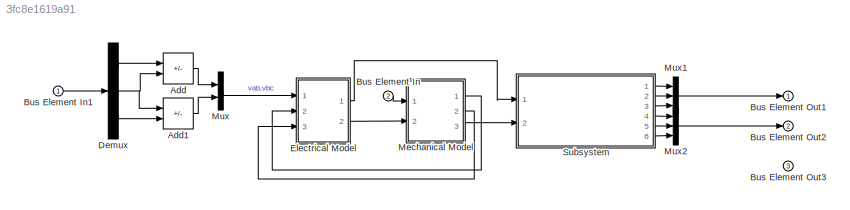
MODEL slx_3fc8e1619a91
KIND model
CONFIG AbsTol = auto
CONFIG EnableMultiTasking = off
CONFIG FixedStep = auto
CONFIG MaxStep = auto
CONFIG MinStep = auto
CONFIG RelTol = 1e-3
CONFIG SampleTimeConstraint = Unconstrained
CONFIG Solver = VariableStepAuto
CONFIG SolverName = VariableStepAuto
CONFIG StartTime = 0.0
CONFIG StopTime = 10.0
BLOCK [Sum] Add
  IconShape = rectangular
  Inputs = +-
  Ports = [2, 1]
BLOCK [Sum] Add1
  IconShape = rectangular
  Inputs = +-
  Ports = [2, 1]
BLOCK [Inport] Bus Element In
  Port = 2
BLOCK [Inport] Bus Element In1
BLOCK [Outport] Bus Element Out1
BLOCK [Outport] Bus Element Out2
  Port = 2
BLOCK [Outport] Bus Element Out3
  Port = 3
BLOCK [Demux] Demux
  Outputs = 3
  Ports = [1, 3]
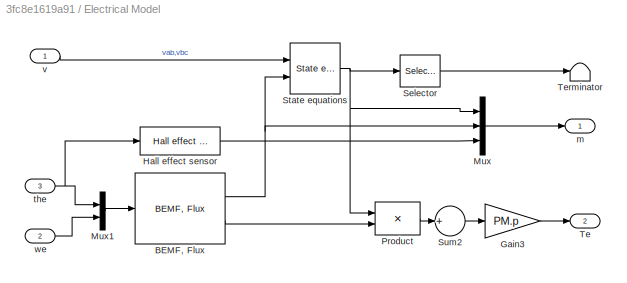
BLOCK [SubSystem] Electrical Model
  Ports = [3, 2]
  RequestExecContextInheritance = off
BLOCK [Reference] Electrical Model/BEMF, Flux  REF=spsPMSynchronousMachineModel/Continuous Trapezoidal/BEMF, Flux
  Ports = [1, 2]
  SourceBlock = spsPMSynchronousMachineModel/Continuous Trapezoidal/BEMF, Flux
  SourceProductBaseCode = PS
  SourceType = SubSystem
BLOCK [Gain] Electrical Model/Gain3
  Gain = PM.p
  OutDataTypeStr = Inherit: Same as input
  ParamDataTypeStr = Inherit: Same as input
  SaturateOnIntegerOverflow = on
BLOCK [Reference] Electrical Model/Hall effect sensor  REF=spsPMSynchronousMachineModel/Continuous Trapezoidal/Hall effect sensor
  Ports = [1, 1]
  SourceBlock = spsPMSynchronousMachineModel/Continuous Trapezoidal/Hall effect sensor
  SourceProductBaseCode = PS
  SourceType = SubSystem
BLOCK [Mux] Electrical Model/Mux
  DisplayOption = bar
  Inputs = 3
  Ports = [3, 1]
BLOCK [Mux] Electrical Model/Mux1
  DisplayOption = bar
  Inputs = 2
  Ports = [2, 1]
BLOCK [Product] Electrical Model/Product
  OutDataTypeStr = Inherit: Same as first input
  Ports = [2, 1]
  SaturateOnIntegerOverflow = on
BLOCK [Selector] Electrical Model/Selector
  IndexOptions = Index vector (dialog)
  Indices = 1:2
  InputPortWidth = 3
  OutputSizes = 1
  Ports = [1, 1]
BLOCK [Reference] Electrical Model/State equations  REF=spsPMSynchronousMachineModel/Continuous Trapezoidal/State equations
  Ports = [2, 1]
  SourceBlock = spsPMSynchronousMachineModel/Continuous Trapezoidal/State equations
  SourceProductBaseCode = PS
  SourceType = SubSystem
BLOCK [Sum] Electrical Model/Sum2
  Inputs = +
  Ports = [1, 1]
  SaturateOnIntegerOverflow = on
BLOCK [Outport] Electrical Model/Te
  InitialOutput = 0
  Port = 2
BLOCK [Terminator] Electrical Model/Terminator
BLOCK [Outport] Electrical Model/m
  InitialOutput = 0
BLOCK [Inport] Electrical Model/the
  Port = 3
BLOCK [Inport] Electrical Model/v
BLOCK [Inport] Electrical Model/we
  Port = 2
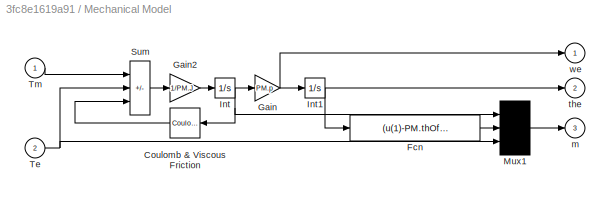
BLOCK [SubSystem] Mechanical Model
  NameLocation = top
  Ports = [2, 3]
  RequestExecContextInheritance = off
BLOCK [Reference] Mechanical Model/Coulomb & Viscous Friction  REF=simulink/Discontinuities/Coulomb &
Viscous Friction
  NameLocation = top
  Ports = [1, 1]
  SourceBlock = simulink/Discontinuities/Coulomb &\nViscous Friction
  SourceProductBaseCode = SL
  SourceType = Coulombic and Viscous Friction
BLOCK [Fcn] Mechanical Model/Fcn
  Expr = (u(1)-PM.thOffest)/PM.p
BLOCK [Gain] Mechanical Model/Gain
  Gain = PM.p
  OutDataTypeStr = Inherit: Same as input
  ParamDataTypeStr = Inherit: Same as input
  SaturateOnIntegerOverflow = on
BLOCK [Gain] Mechanical Model/Gain2
  Gain = 1/PM.J
  OutDataTypeStr = Inherit: Same as input
  ParamDataTypeStr = Inherit: Same as input
  SaturateOnIntegerOverflow = on
BLOCK [Integrator] Mechanical Model/Int
  InitialCondition = PM.wmo
  Ports = [1, 1]
BLOCK [Integrator] Mechanical Model/Int1
  InitialCondition = PM.tho+PM.thOffest
  Ports = [1, 1]
BLOCK [Mux] Mechanical Model/Mux1
  Inputs = 3
  Ports = [3, 1]
BLOCK [Sum] Mechanical Model/Sum
  IconShape = rectangular
  InputSameDT = on
  Inputs = -+-
  OutDataTypeStr = Inherit: Same as first input
  Ports = [3, 1]
  SaturateOnIntegerOverflow = on
BLOCK [Inport] Mechanical Model/Te
  Port = 2
BLOCK [Inport] Mechanical Model/Tm
BLOCK [Outport] Mechanical Model/m
  InitialOutput = 0
  Port = 3
BLOCK [Outport] Mechanical Model/the
  InitialOutput = 0
  Port = 2
BLOCK [Outport] Mechanical Model/we
  InitialOutput = 0
BLOCK [Mux] Mux
  DisplayOption = bar
  Inputs = 2
  Ports = [2, 1]
BLOCK [Mux] Mux1
  DisplayOption = bar
  Inputs = 3
  Ports = [3, 1]
BLOCK [Mux] Mux2
  DisplayOption = bar
  Inputs = 3
  Ports = [3, 1]
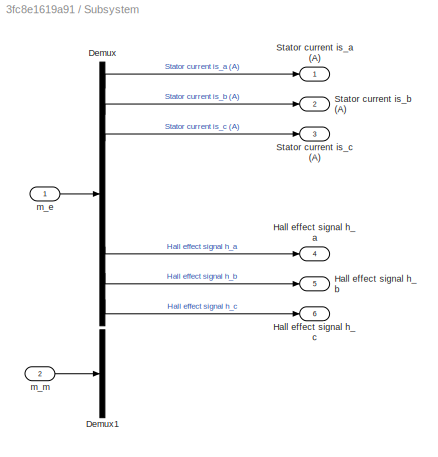
BLOCK [SubSystem] Subsystem
  Ports = [2, 6]
  RequestExecContextInheritance = off
BLOCK [Demux] Subsystem/Demux
  Outputs = [1,1,1,1,1,1,1,1,1]
  Ports = [1, 9]
BLOCK [Demux] Subsystem/Demux1
  Outputs = [1,1,1]
  Ports = [1, 3]
BLOCK [Outport] Subsystem/Hall effect signal h_a
  Port = 4
BLOCK [Outport] Subsystem/Hall effect signal h_b
  Port = 5
BLOCK [Outport] Subsystem/Hall effect signal h_c
  Port = 6
BLOCK [Outport] Subsystem/Stator current is_a (A)
BLOCK [Outport] Subsystem/Stator current is_b (A)
  Port = 2
BLOCK [Outport] Subsystem/Stator current is_c (A)
  Port = 3
BLOCK [Inport] Subsystem/m_e
BLOCK [Inport] Subsystem/m_m
  Port = 2
LINE Add1:1 -> Mux:2
LINE Add:1 -> Mux:1
LINE Bus Element In1:1 -> Demux:1
LINE Bus Element In:1 -> Mechanical Model:1
LINE Demux:1 -> Add:1
NET Demux:2 -> Add1:1, Add:2
LINE Demux:3 -> Add1:2
NET Electrical Model/BEMF, Flux:1 -> Electrical Model/Mux:2, Electrical Model/State equations:2
LINE Electrical Model/BEMF, Flux:2 -> Electrical Model/Product:2
LINE Electrical Model/Gain3:1 -> Electrical Model/Te:1
LINE Electrical Model/Hall effect sensor:1 -> Electrical Model/Mux:3
LINE Electrical Model/Mux1:1 -> Electrical Model/BEMF, Flux:1
LINE Electrical Model/Mux:1 -> Electrical Model/m:1
LINE Electrical Model/Product:1 -> Electrical Model/Sum2:1
LINE Electrical Model/Selector:1 -> Electrical Model/Terminator:1
NET Electrical Model/State equations:1 -> Electrical Model/Mux:1, Electrical Model/Product:1, Electrical Model/Selector:1
LINE Electrical Model/Sum2:1 -> Electrical Model/Gain3:1
NET Electrical Model/the:1 -> Electrical Model/Hall effect sensor:1, Electrical Model/Mux1:1
LINE Electrical Model/v:1 -> Electrical Model/State equations:1
LINE Electrical Model/we:1 -> Electrical Model/Mux1:2
LINE Electrical Model:1 -> Subsystem:1
LINE Electrical Model:2 -> Mechanical Model:2
LINE Mechanical Model/Coulomb & Viscous Friction:1 -> Mechanical Model/Sum:3
LINE Mechanical Model/Fcn:1 -> Mechanical Model/Mux1:2
LINE Mechanical Model/Gain2:1 -> Mechanical Model/Int:1
NET Mechanical Model/Gain:1 -> Mechanical Model/Int1:1, Mechanical Model/we:1
NET Mechanical Model/Int1:1 -> Mechanical Model/Fcn:1, Mechanical Model/the:1
NET Mechanical Model/Int:1 -> Mechanical Model/Coulomb & Viscous Friction:1, Mechanical Model/Gain:1, Mechanical Model/Mux1:1
LINE Mechanical Model/Mux1:1 -> Mechanical Model/m:1
LINE Mechanical Model/Sum:1 -> Mechanical Model/Gain2:1
NET Mechanical Model/Te:1 -> Mechanical Model/Mux1:3, Mechanical Model/Sum:2
LINE Mechanical Model/Tm:1 -> Mechanical Model/Sum:1
LINE Mechanical Model:1 -> Electrical Model:2
LINE Mechanical Model:2 -> Electrical Model:3
LINE Mechanical Model:3 -> Subsystem:2
LINE Mux1:1 -> Bus Element Out1:1
LINE Mux2:1 -> Bus Element Out2:1
LINE Mux:1 -> Electrical Model:1
LINE Subsystem/Demux:1 -> Subsystem/Stator current is_a (A):1
LINE Subsystem/Demux:2 -> Subsystem/Stator current is_b (A):1
LINE Subsystem/Demux:3 -> Subsystem/Stator current is_c (A):1
LINE Subsystem/Demux:7 -> Subsystem/Hall effect signal h_a:1
LINE Subsystem/Demux:8 -> Subsystem/Hall effect signal h_b:1
LINE Subsystem/Demux:9 -> Subsystem/Hall effect signal h_c:1
LINE Subsystem/m_e:1 -> Subsystem/Demux:1
LINE Subsystem/m_m:1 -> Subsystem/Demux1:1
LINE Subsystem:1 -> Mux1:1
LINE Subsystem:2 -> Mux1:2
LINE Subsystem:3 -> Mux1:3
LINE Subsystem:4 -> Mux2:1
LINE Subsystem:5 -> Mux2:2
LINE Subsystem:6 -> Mux2:3
note: NET lines group one-source signal fan-out (src -> all destinations, sorted); 1:1 wires keep LINE
